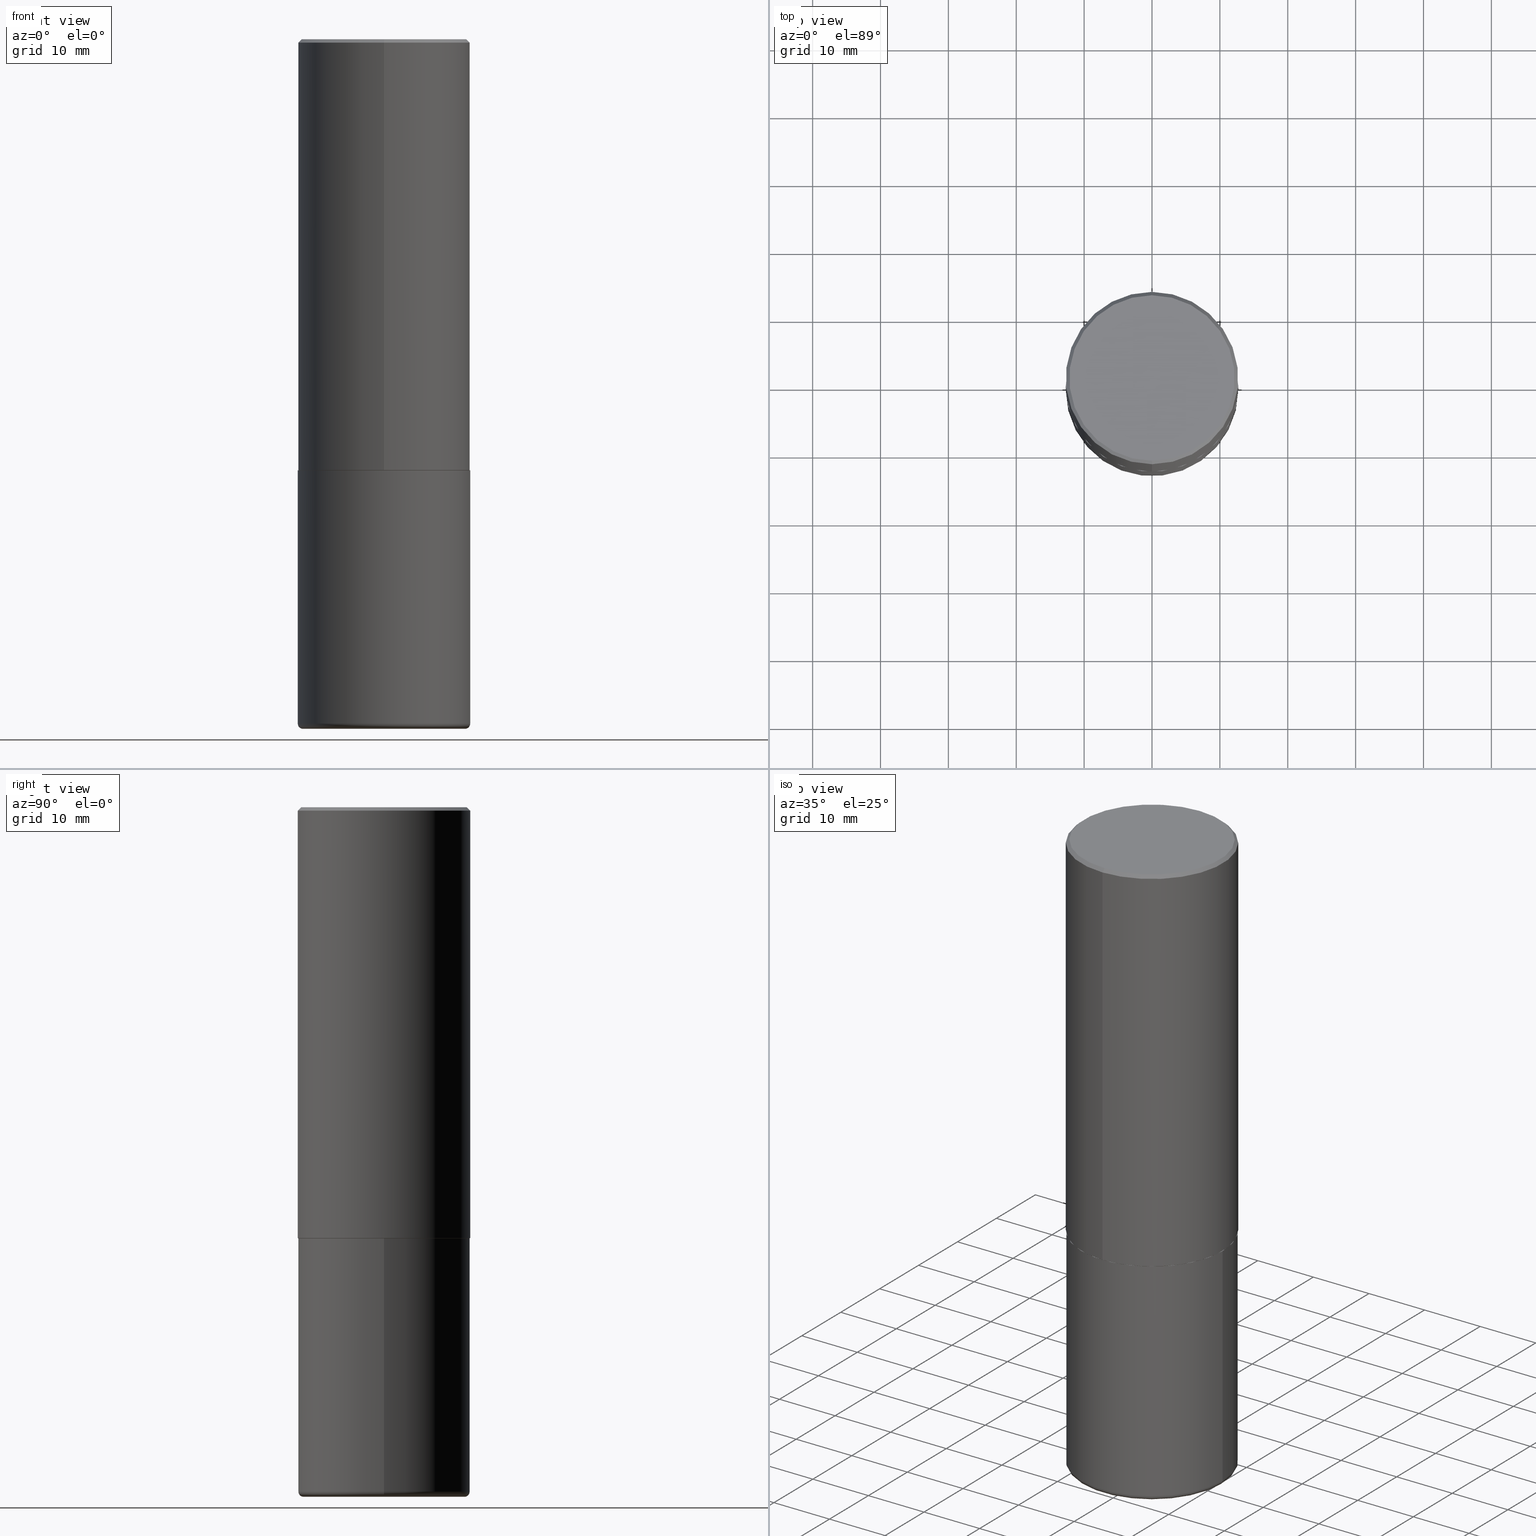
[diagram: canonical four-view strip — front | top / right | iso, engineering-drawing reading convention]
A machine part, canonical four-view strip (front | top / right | iso — engineering-drawing reading convention). The complete STEP part file that produces these views, byte-faithful:
ISO-10303-21;
HEADER;
FILE_DESCRIPTION (( 'STEP AP203' ),
    '1' );
FILE_NAME ('38305.STEP',
    '2024-03-02T21:49:46',
    ( '' ),
    ( '' ),
    'SwSTEP 2.0',
    'SolidWorks 2023',
    '' );
FILE_SCHEMA (( 'CONFIG_CONTROL_DESIGN' ));
ENDSEC;

DATA;
#1 = DATE_TIME_ROLE ( 'creation_date' ) ;
#2 = ADVANCED_FACE ( 'NONE', ( #19 ), #211, .T. ) ;
#3 = ORIENTED_EDGE ( 'NONE', *, *, #183, .F. ) ;
#4 = CALENDAR_DATE ( 2024, 2, 3 ) ;
#5 = LOCAL_TIME ( 16, 49, 46.00000000000000000, #68 ) ;
#6 = CARTESIAN_POINT ( 'NONE',  ( -0.4999999999999999445, -1.030846723640678645E-14, -3.970000000000000195 ) ) ;
#7 = ADVANCED_FACE ( 'NONE', ( #174 ), #368, .T. ) ;
#8 = CARTESIAN_POINT ( 'NONE',  ( 0.4699999999999999734, -1.714317337371983400E-14, -3.970000000000000195 ) ) ;
#9 = APPLICATION_CONTEXT ( 'configuration controlled 3d designs of mechanical parts and assemblies' ) ;
#10 = SECURITY_CLASSIFICATION_LEVEL ( 'unclassified' ) ;
#11 = DIRECTION ( 'NONE',  ( -2.444465131706345255E-29, 3.492918657822378473E-15, 1.000000000000000000 ) ) ;
#12 = DIRECTION ( 'NONE',  ( -6.982962677686265922E-15, -1.000000000000000000, 3.491643216902136408E-15 ) ) ;
#13 = COORDINATED_UNIVERSAL_TIME_OFFSET ( 5, 0, .BEHIND. ) ;
#14 = LINE ( 'NONE', #111, #262 ) ;
#15 = EDGE_CURVE ( 'NONE', #197, #304, #14, .T. ) ;
#16 = PERSON_AND_ORGANIZATION ( #272, #349 ) ;
#17 = CARTESIAN_POINT ( 'NONE',  ( 3.491481338843133355E-15, 0.4999999999999999445, -0.02000000000000185310 ) ) ;
#18 = CIRCLE ( 'NONE', #401, 0.4999999999999999445 ) ;
#19 = FACE_OUTER_BOUND ( 'NONE', #374, .T. ) ;
#20 = AXIS2_PLACEMENT_3D ( 'NONE', #267, #203, #340 ) ;
#21 = DIRECTION ( 'NONE',  ( -2.445468806185136597E-29, 3.491481338843145583E-15, 1.000000000000000000 ) ) ;
#22 = DIRECTION ( 'NONE',  ( -6.982962677686265922E-15, -1.000000000000000000, 3.492918657822378473E-15 ) ) ;
#23 = VERTEX_POINT ( 'NONE', #104 ) ;
#24 = CIRCLE ( 'NONE', #316, 0.4989999999999999991 ) ;
#25 = FACE_OUTER_BOUND ( 'NONE', #415, .T. ) ;
#26 = ORIENTED_EDGE ( 'NONE', *, *, #280, .T. ) ;
#27 = DIRECTION ( 'NONE',  ( -1.000000000000000000, 6.982962677686265922E-15, -4.876176775795935793E-29 ) ) ;
#28 = MANIFOLD_SOLID_BREP ( 'Body-Move/Copy2[2]', #244 ) ;
#29 = AXIS2_PLACEMENT_3D ( 'NONE', #95, #189, #318 ) ;
#30 = ORIENTED_EDGE ( 'NONE', *, *, #83, .T. ) ;
#31 = DIRECTION ( 'NONE',  ( 1.000000000000000000, -6.982962677686266711E-15, 4.876176775795935793E-29 ) ) ;
#32 = ORIENTED_EDGE ( 'NONE', *, *, #15, .F. ) ;
#33 = EDGE_CURVE ( 'NONE', #163, #285, #294, .T. ) ;
#34 = AXIS2_PLACEMENT_3D ( 'NONE', #301, #298, #333 ) ;
#35 = ORIENTED_EDGE ( 'NONE', *, *, #287, .T. ) ;
#36 = EDGE_CURVE ( 'NONE', #320, #407, #138, .T. ) ;
#37 = DATE_AND_TIME ( #135, #110 ) ;
#38 = ORIENTED_EDGE ( 'NONE', *, *, #412, .F. ) ;
#39 = DATE_AND_TIME ( #206, #5 ) ;
#40 = CARTESIAN_POINT ( 'NONE',  ( 6.113672015462842613E-29, -8.728703347107864943E-15, -2.500000000000000000 ) ) ;
#41 = DIRECTION ( 'NONE',  ( -2.444465131706345255E-29, 3.492918657822378473E-15, 1.000000000000000000 ) ) ;
#42 = APPROVAL_PERSON_ORGANIZATION ( #196, #309, #164 ) ;
#43 = CARTESIAN_POINT ( 'NONE',  ( 4.888930263412717169E-31, -6.985837315644793974E-17, -0.02000000000000010797 ) ) ;
#44 = APPROVAL_DATE_TIME ( #39, #309 ) ;
#45 = ORIENTED_EDGE ( 'NONE', *, *, #83, .F. ) ;
#46 = COORDINATED_UNIVERSAL_TIME_OFFSET ( 5, 0, .BEHIND. ) ;
#47 = CARTESIAN_POINT ( 'NONE',  ( -0.5000000000000000000, 3.552713678800500929E-15, -2.459467545127452891E-29 ) ) ;
#48 = CC_DESIGN_PERSON_AND_ORGANIZATION_ASSIGNMENT ( #16, #328, ( #356 ) ) ;
#49 = CARTESIAN_POINT ( 'NONE',  ( 0.4699999999999999734, -1.724791781388512737E-14, -4.000000000000000000 ) ) ;
#50 = AXIS2_PLACEMENT_3D ( 'NONE', #78, #268, #394 ) ;
#51 = ORIENTED_EDGE ( 'NONE', *, *, #66, .T. ) ;
#52 =( NAMED_UNIT ( * ) PLANE_ANGLE_UNIT ( ) SI_UNIT ( $, .RADIAN. ) );
#53 = CARTESIAN_POINT ( 'NONE',  ( 3.421651712066270057E-15, 0.4799999999999998157, -1.552124180431797316E-15 ) ) ;
#54 = LENGTH_MEASURE_WITH_UNIT ( LENGTH_MEASURE( 0.02539999999999999897 ), #342 );
#55 = CARTESIAN_POINT ( 'NONE',  ( -3.430248998885764992E-15, -0.5000000000000001110, -0.01999999999999835937 ) ) ;
#56 = CLOSED_SHELL ( 'NONE', ( #269, #409, #358, #161, #404, #213 ) ) ;
#57 = SECURITY_CLASSIFICATION ( '', '', #10 ) ;
#58 = ORIENTED_EDGE ( 'NONE', *, *, #317, .F. ) ;
#59 = CARTESIAN_POINT ( 'NONE',  ( 6.113672015462842613E-29, -8.728703347107864943E-15, -2.500000000000000000 ) ) ;
#60 = CARTESIAN_POINT ( 'NONE',  ( 6.111162829265862436E-29, -8.732296644555945592E-15, -2.499999999999999556 ) ) ;
#61 = VECTOR ( 'NONE', #218, 39.37007874015748143 ) ;
#62 = EDGE_CURVE ( 'NONE', #23, #132, #330, .T. ) ;
#63 = ORIENTED_EDGE ( 'NONE', *, *, #15, .T. ) ;
#64 = EDGE_LOOP ( 'NONE', ( #26, #253, #45, #246 ) ) ;
#65 = ORIENTED_EDGE ( 'NONE', *, *, #215, .F. ) ;
#66 = EDGE_CURVE ( 'NONE', #320, #156, #194, .T. ) ;
#67 = VECTOR ( 'NONE', #347, 39.37007874015748143 ) ;
#68 = COORDINATED_UNIVERSAL_TIME_OFFSET ( 5, 0, .BEHIND. ) ;
#69 = DIRECTION ( 'NONE',  ( -6.982962677686265922E-15, -1.000000000000000000, 3.492918657822378473E-15 ) ) ;
#70 = ORIENTED_EDGE ( 'NONE', *, *, #171, .F. ) ;
#71 = APPROVAL_STATUS ( 'not_yet_approved' ) ;
#72 = DIRECTION ( 'NONE',  ( -6.982962677686265922E-15, -1.000000000000000000, 3.284787166730577015E-15 ) ) ;
#73 = APPROVAL_ROLE ( '' ) ;
#74 = CARTESIAN_POINT ( 'NONE',  ( 3.491481338843133355E-15, 0.4999999999999999445, -0.02000000000000185310 ) ) ;
#75 = APPROVAL_ROLE ( '' ) ;
#76 = AXIS2_PLACEMENT_3D ( 'NONE', #79, #207, #393 ) ;
#77 = ADVANCED_FACE ( 'NONE', ( #210 ), #239, .F. ) ;
#78 = CARTESIAN_POINT ( 'NONE',  ( 0.000000000000000000, 0.000000000000000000, 0.000000000000000000 ) ) ;
#79 = CARTESIAN_POINT ( 'NONE',  ( 4.888930263412717169E-31, -6.985837315644793974E-17, -0.02000000000000010797 ) ) ;
#80 = DIRECTION ( 'NONE',  ( 1.000000000000000000, -6.982962677686267499E-15, 0.000000000000000000 ) ) ;
#81 = FACE_OUTER_BOUND ( 'NONE', #383, .T. ) ;
#82 = DIRECTION ( 'NONE',  ( 6.982962677686265922E-15, 1.000000000000000000, -3.491643216902136408E-15 ) ) ;
#83 = EDGE_CURVE ( 'NONE', #156, #320, #18, .T. ) ;
#84 = AXIS2_PLACEMENT_3D ( 'NONE', #392, #41, #72 ) ;
#85 = LOCAL_TIME ( 16, 49, 46.00000000000000000, #162 ) ;
#86 = DIRECTION ( 'NONE',  ( 2.444465131706344694E-29, -3.492918657822378868E-15, -1.000000000000000000 ) ) ;
#87 = AXIS2_PLACEMENT_3D ( 'NONE', #277, #408, #115 ) ;
#88 = DIRECTION ( 'NONE',  ( 1.000000000000000000, -6.982962677686267499E-15, 4.883557194083114022E-29 ) ) ;
#89 = CARTESIAN_POINT ( 'NONE',  ( -3.491481338843133750E-15, -0.5000000000000001110, 1.746459328911189631E-15 ) ) ;
#90 = ORIENTED_EDGE ( 'NONE', *, *, #33, .F. ) ;
#91 = DIMENSIONAL_EXPONENTS ( 1.000000000000000000, 0.000000000000000000, 0.000000000000000000, 0.000000000000000000, 0.000000000000000000, 0.000000000000000000, 0.000000000000000000 ) ;
#92 = DIRECTION ( 'NONE',  ( -2.445468806185136597E-29, 3.491481338843145583E-15, 1.000000000000000000 ) ) ;
#93 = VECTOR ( 'NONE', #344, 39.37007874015748143 ) ;
#94 = UNCERTAINTY_MEASURE_WITH_UNIT (LENGTH_MEASURE( 1.000000000000000082E-05 ), #185, 'distance_accuracy_value', 'NONE');
#95 = CARTESIAN_POINT ( 'NONE',  ( 4.888930263412717169E-31, -6.985837315644793974E-17, -0.02000000000000010797 ) ) ;
#96 = VERTEX_POINT ( 'NONE', #49 ) ;
#97 = PRODUCT_DEFINITION_FORMATION_WITH_SPECIFIED_SOURCE ( 'ANY', '', #256, .NOT_KNOWN. ) ;
#98 = EDGE_CURVE ( 'NONE', #163, #304, #336, .T. ) ;
#99 = ORIENTED_EDGE ( 'NONE', *, *, #171, .T. ) ;
#100 = ORIENTED_EDGE ( 'NONE', *, *, #140, .T. ) ;
#101 = DATE_AND_TIME ( #323, #362 ) ;
#102 = EDGE_LOOP ( 'NONE', ( #279, #319 ) ) ;
#103 = APPROVAL_DATE_TIME ( #101, #367 ) ;
#104 = CARTESIAN_POINT ( 'NONE',  ( -3.484498376165385415E-15, -0.4990000000000087144, -2.499999999999997780 ) ) ;
#105 = DIRECTION ( 'NONE',  ( -2.444465131706345255E-29, 3.492918657822378473E-15, 1.000000000000000000 ) ) ;
#106 = DATE_TIME_ROLE ( 'classification_date' ) ;
#107 = DIRECTION ( 'NONE',  ( -2.445468806185136597E-29, 3.491481338843145583E-15, 1.000000000000000000 ) ) ;
#108 = DIRECTION ( 'NONE',  ( -2.444465131706344694E-29, 3.492918657822378868E-15, 1.000000000000000000 ) ) ;
#109 = APPROVAL_DATE_TIME ( #290, #200 ) ;
#110 = LOCAL_TIME ( 16, 49, 46.00000000000000000, #46 ) ;
#111 = CARTESIAN_POINT ( 'NONE',  ( 3.552713678800501718E-15, 0.5000000000000001110, -1.746459328911189631E-15 ) ) ;
#112 = CARTESIAN_POINT ( 'NONE',  ( 6.108718364134157248E-29, -8.728803725898125516E-15, -2.499000000000000110 ) ) ;
#113 =( NAMED_UNIT ( * ) SI_UNIT ( $, .STERADIAN. ) SOLID_ANGLE_UNIT ( ) );
#114 = FACE_OUTER_BOUND ( 'NONE', #350, .T. ) ;
#115 = DIRECTION ( 'NONE',  ( -6.982962677686265922E-15, -1.000000000000000000, 3.284787166730577015E-15 ) ) ;
#116 = TOROIDAL_SURFACE ( 'NONE', #230, 0.4699999999999999734, 0.02999999999999995379 ) ;
#117 = CARTESIAN_POINT ( 'NONE',  ( 3.351822085289406364E-15, 0.4799999999999998157, -1.614362568093269153E-15 ) ) ;
#118 = CARTESIAN_POINT ( 'NONE',  ( -0.4699999999999999734, -1.046742086685344905E-14, -4.000000000000000000 ) ) ;
#119 = DIRECTION ( 'NONE',  ( 2.438088387897960049E-29, -3.491481338843145188E-15, -1.000000000000000000 ) ) ;
#120 = EDGE_CURVE ( 'NONE', #304, #130, #305, .T. ) ;
#121 = MECHANICAL_CONTEXT ( 'NONE', #402, 'mechanical' ) ;
#122 = DIRECTION ( 'NONE',  ( -2.444465131706345255E-29, 3.492918657822378473E-15, 1.000000000000000000 ) ) ;
#123 = FACE_OUTER_BOUND ( 'NONE', #260, .T. ) ;
#124 = APPROVAL_PERSON_ORGANIZATION ( #302, #200, #73 ) ;
#125 = ORIENTED_EDGE ( 'NONE', *, *, #329, .F. ) ;
#126 = EDGE_LOOP ( 'NONE', ( #99, #35, #3, #236 ) ) ;
#127 = CC_DESIGN_APPROVAL ( #309, ( #356 ) ) ;
#128 = ORIENTED_EDGE ( 'NONE', *, *, #148, .T. ) ;
#129 = DIRECTION ( 'NONE',  ( -2.444465131706345255E-29, 3.492918657822378473E-15, 1.000000000000000000 ) ) ;
#130 = VERTEX_POINT ( 'NONE', #176 ) ;
#131 = SHAPE_DEFINITION_REPRESENTATION ( #286, #137 ) ;
#132 = VERTEX_POINT ( 'NONE', #397 ) ;
#133 =( GEOMETRIC_REPRESENTATION_CONTEXT ( 3 ) GLOBAL_UNCERTAINTY_ASSIGNED_CONTEXT ( ( #94 ) ) GLOBAL_UNIT_ASSIGNED_CONTEXT ( ( #185, #52, #113 ) ) REPRESENTATION_CONTEXT ( 'NONE', 'WORKASPACE' ) );
#134 = DIRECTION ( 'NONE',  ( 1.000000000000000000, -6.982962677686267499E-15, 0.000000000000000000 ) ) ;
#135 = CALENDAR_DATE ( 2024, 2, 3 ) ;
#136 = FACE_OUTER_BOUND ( 'NONE', #216, .T. ) ;
#137 = ADVANCED_BREP_SHAPE_REPRESENTATION ( '38305', ( #310, #28, #369 ), #133 ) ;
#138 = LINE ( 'NONE', #47, #348 ) ;
#139 = CALENDAR_DATE ( 2024, 2, 3 ) ;
#140 = EDGE_CURVE ( 'NONE', #285, #163, #178, .T. ) ;
#141 = CIRCLE ( 'NONE', #20, 0.02999999999999995379 ) ;
#142 = CARTESIAN_POINT ( 'NONE',  ( -3.484498376165385415E-15, -0.4990000000000087144, -2.499999999999997780 ) ) ;
#143 = DIRECTION ( 'NONE',  ( -2.444465131706345255E-29, 3.492918657822378473E-15, 1.000000000000000000 ) ) ;
#144 = PERSON_AND_ORGANIZATION ( #272, #349 ) ;
#145 = AXIS2_PLACEMENT_3D ( 'NONE', #273, #108, #295 ) ;
#146 = CARTESIAN_POINT ( 'NONE',  ( 0.5000000000000000000, -1.222018468595099830E-14, -2.500000000000000000 ) ) ;
#147 = DIRECTION ( 'NONE',  ( 6.982962677686265922E-15, 1.000000000000000000, -3.492918657822378868E-15 ) ) ;
#148 = EDGE_CURVE ( 'NONE', #197, #132, #157, .T. ) ;
#149 = CYLINDRICAL_SURFACE ( 'NONE', #339, 0.5000000000000001110 ) ;
#150 = ORIENTED_EDGE ( 'NONE', *, *, #343, .F. ) ;
#151 = CARTESIAN_POINT ( 'NONE',  ( -0.5000000000000000000, -7.742228452357075234E-15, -2.500000000000000000 ) ) ;
#152 = EDGE_CURVE ( 'NONE', #96, #156, #395, .T. ) ;
#153 = PRODUCT_RELATED_PRODUCT_CATEGORY ( 'detail', '', ( #256 ) ) ;
#154 = ORIENTED_EDGE ( 'NONE', *, *, #148, .F. ) ;
#155 = CARTESIAN_POINT ( 'NONE',  ( 9.781875224740546387E-29, -1.396592535537258233E-14, -4.000000000000000000 ) ) ;
#156 = VERTEX_POINT ( 'NONE', #327 ) ;
#157 = CIRCLE ( 'NONE', #228, 0.5000000000000002220 ) ;
#158 = AXIS2_PLACEMENT_3D ( 'NONE', #250, #119, #248 ) ;
#159 = ADVANCED_FACE ( 'NONE', ( #136 ), #202, .T. ) ;
#160 = EDGE_LOOP ( 'NONE', ( #70, #324 ) ) ;
#161 = ADVANCED_FACE ( 'NONE', ( #204 ), #201, .T. ) ;
#162 = COORDINATED_UNIVERSAL_TIME_OFFSET ( 5, 0, .BEHIND. ) ;
#163 = VERTEX_POINT ( 'NONE', #53 ) ;
#164 = APPROVAL_ROLE ( '' ) ;
#165 = DIRECTION ( 'NONE',  ( 1.000000000000000000, -6.982962677686269077E-15, 0.000000000000000000 ) ) ;
#166 = DIRECTION ( 'NONE',  ( -2.445468806185136877E-29, 3.491481338843145188E-15, 1.000000000000000000 ) ) ;
#167 = AXIS2_PLACEMENT_3D ( 'NONE', #43, #357, #82 ) ;
#168 = CIRCLE ( 'NONE', #219, 0.4699999999999999734 ) ;
#169 = PERSON_AND_ORGANIZATION ( #272, #349 ) ;
#170 = CARTESIAN_POINT ( 'NONE',  ( -3.361644018908049661E-15, -0.4799999999999998157, 1.801077731077684661E-15 ) ) ;
#171 = EDGE_CURVE ( 'NONE', #23, #172, #24, .T. ) ;
#172 = VERTEX_POINT ( 'NONE', #341 ) ;
#173 = COORDINATED_UNIVERSAL_TIME_OFFSET ( 5, 0, .BEHIND. ) ;
#174 = FACE_OUTER_BOUND ( 'NONE', #126, .T. ) ;
#175 = PERSON_AND_ORGANIZATION_ROLE ( 'classification_officer' ) ;
#176 = CARTESIAN_POINT ( 'NONE',  ( -3.430248998885764992E-15, -0.5000000000000001110, -0.01999999999999835937 ) ) ;
#177 = ADVANCED_FACE ( 'NONE', ( #114 ), #400, .F. ) ;
#178 = CIRCLE ( 'NONE', #284, 0.4799999999999998157 ) ;
#179 = CC_DESIGN_APPROVAL ( #200, ( #57 ) ) ;
#180 = CARTESIAN_POINT ( 'NONE',  ( -3.042791369841808055E-45, 4.347872509910743958E-31, 1.244767753229437217E-16 ) ) ;
#181 = DIRECTION ( 'NONE',  ( 0.000000000000000000, 0.000000000000000000, 1.000000000000000000 ) ) ;
#182 = DIRECTION ( 'NONE',  ( 1.000000000000000000, 0.000000000000000000, 0.000000000000000000 ) ) ;
#183 = EDGE_CURVE ( 'NONE', #132, #197, #276, .T. ) ;
#184 = AXIS2_PLACEMENT_3D ( 'NONE', #366, #396, #134 ) ;
#185 =( CONVERSION_BASED_UNIT ( 'INCH', #54 ) LENGTH_UNIT ( ) NAMED_UNIT ( #91 ) );
#186 = CIRCLE ( 'NONE', #87, 0.4989999999999999991 ) ;
#187 = CARTESIAN_POINT ( 'NONE',  ( 9.781875224740546387E-29, -1.396592535537258233E-14, -4.000000000000000000 ) ) ;
#188 = ORIENTED_EDGE ( 'NONE', *, *, #36, .T. ) ;
#189 = DIRECTION ( 'NONE',  ( 2.444465131706345255E-29, -3.492918657822378473E-15, -1.000000000000000000 ) ) ;
#190 = CIRCLE ( 'NONE', #281, 0.5000000000000000000 ) ;
#191 = ORIENTED_EDGE ( 'NONE', *, *, #120, .T. ) ;
#192 = ORIENTED_EDGE ( 'NONE', *, *, #229, .F. ) ;
#193 = EDGE_LOOP ( 'NONE', ( #30, #188, #255, #150 ) ) ;
#194 = CIRCLE ( 'NONE', #184, 0.4999999999999999445 ) ;
#195 = AXIS2_PLACEMENT_3D ( 'NONE', #303, #11, #326 ) ;
#196 = PERSON_AND_ORGANIZATION ( #272, #349 ) ;
#197 = VERTEX_POINT ( 'NONE', #371 ) ;
#198 = APPLICATION_PROTOCOL_DEFINITION ( 'international standard', 'config_control_design', 1994, #9 ) ;
#199 = DIRECTION ( 'NONE',  ( 4.937700262164543309E-15, 0.7071067811865444641, -0.7071067811865505703 ) ) ;
#200 = APPROVAL ( #71, 'UNSPECIFIED' ) ;
#201 = CYLINDRICAL_SURFACE ( 'NONE', #50, 0.5000000000000000000 ) ;
#202 = CONICAL_SURFACE ( 'NONE', #346, 0.4989999999999999991, 0.7853981633979605359 ) ;
#203 = DIRECTION ( 'NONE',  ( 7.105427357601001859E-15, 1.000000000000000000, -3.491481338843145583E-15 ) ) ;
#204 = FACE_OUTER_BOUND ( 'NONE', #212, .T. ) ;
#205 = ORIENTED_EDGE ( 'NONE', *, *, #36, .F. ) ;
#206 = CALENDAR_DATE ( 2024, 2, 3 ) ;
#207 = DIRECTION ( 'NONE',  ( -2.444465131706345255E-29, 3.492918657822378473E-15, 1.000000000000000000 ) ) ;
#208 = DIRECTION ( 'NONE',  ( -2.444465131706345255E-29, 3.492918657822378868E-15, 1.000000000000000000 ) ) ;
#209 = PLANE ( 'NONE',  #222 ) ;
#210 = FACE_OUTER_BOUND ( 'NONE', #160, .T. ) ;
#211 = CONICAL_SURFACE ( 'NONE', #167, 0.5000000000000000000, 0.7853981633974473908 ) ;
#212 = EDGE_LOOP ( 'NONE', ( #205, #51, #283, #58 ) ) ;
#213 = ADVANCED_FACE ( 'NONE', ( #405 ), #376, .T. ) ;
#214 = EDGE_LOOP ( 'NONE', ( #227, #289, #355, #388 ) ) ;
#215 = EDGE_CURVE ( 'NONE', #285, #130, #373, .T. ) ;
#216 = EDGE_LOOP ( 'NONE', ( #225, #258, #411, #154 ) ) ;
#217 = AXIS2_PLACEMENT_3D ( 'NONE', #8, #263, #390 ) ;
#218 = DIRECTION ( 'NONE',  ( -2.444465131706345255E-29, 3.492918657822378868E-15, 1.000000000000000000 ) ) ;
#219 = AXIS2_PLACEMENT_3D ( 'NONE', #187, #92, #312 ) ;
#220 = CARTESIAN_POINT ( 'NONE',  ( 0.000000000000000000, 0.000000000000000000, 0.000000000000000000 ) ) ;
#221 = DESIGN_CONTEXT ( 'detailed design', #9, 'design' ) ;
#222 = AXIS2_PLACEMENT_3D ( 'NONE', #399, #307, #27 ) ;
#223 = ORIENTED_EDGE ( 'NONE', *, *, #412, .T. ) ;
#224 = ORIENTED_EDGE ( 'NONE', *, *, #66, .F. ) ;
#225 = ORIENTED_EDGE ( 'NONE', *, *, #287, .F. ) ;
#226 = DATE_AND_TIME ( #4, #85 ) ;
#227 = ORIENTED_EDGE ( 'NONE', *, *, #140, .F. ) ;
#228 = AXIS2_PLACEMENT_3D ( 'NONE', #112, #105, #241 ) ;
#229 = EDGE_CURVE ( 'NONE', #352, #96, #168, .T. ) ;
#230 = AXIS2_PLACEMENT_3D ( 'NONE', #245, #315, #375 ) ;
#231 = PERSON_AND_ORGANIZATION ( #272, #349 ) ;
#232 = CYLINDRICAL_SURFACE ( 'NONE', #195, 0.5000000000000001110 ) ;
#233 = DIRECTION ( 'NONE',  ( -2.444465131706345255E-29, 3.492918657822378473E-15, 1.000000000000000000 ) ) ;
#234 = CARTESIAN_POINT ( 'NONE',  ( 6.111162829265862436E-29, -8.732296644555945592E-15, -2.499999999999999556 ) ) ;
#235 = PERSON_AND_ORGANIZATION_ROLE ( 'design_supplier' ) ;
#236 = ORIENTED_EDGE ( 'NONE', *, *, #62, .F. ) ;
#237 = CC_DESIGN_APPROVAL ( #367, ( #97 ) ) ;
#238 = DIRECTION ( 'NONE',  ( 5.024295867790635654E-15, 0.7071067811869121700, 0.7071067811861828645 ) ) ;
#239 = PLANE ( 'NONE',  #145 ) ;
#240 = CC_DESIGN_DATE_AND_TIME_ASSIGNMENT ( #37, #106, ( #57 ) ) ;
#241 = DIRECTION ( 'NONE',  ( -6.982962677686266711E-15, -1.000000000000000000, 3.278217592397114284E-15 ) ) ;
#242 = DIRECTION ( 'NONE',  ( -6.982962677686266711E-15, -1.000000000000000000, 3.278217592397114284E-15 ) ) ;
#243 = ADVANCED_FACE ( 'NONE', ( #25 ), #149, .T. ) ;
#244 = CLOSED_SHELL ( 'NONE', ( #7, #306, #282, #2, #243, #159, #77, #177 ) ) ;
#245 = CARTESIAN_POINT ( 'NONE',  ( 9.708511160554992872E-29, -1.386118091520728738E-14, -3.970000000000000195 ) ) ;
#246 = ORIENTED_EDGE ( 'NONE', *, *, #152, .F. ) ;
#247 = FACE_OUTER_BOUND ( 'NONE', #102, .T. ) ;
#248 = DIRECTION ( 'NONE',  ( -1.000000000000000000, 6.982962677686265922E-15, -4.876176775795935793E-29 ) ) ;
#249 = LINE ( 'NONE', #89, #61 ) ;
#250 = CARTESIAN_POINT ( 'NONE',  ( 9.781875224740546387E-29, -1.396592535537258233E-14, -4.000000000000000000 ) ) ;
#251 = DIRECTION ( 'NONE',  ( -2.445468806185136597E-29, 3.491481338843145583E-15, 1.000000000000000000 ) ) ;
#252 = CIRCLE ( 'NONE', #296, 0.5000000000000000000 ) ;
#253 = ORIENTED_EDGE ( 'NONE', *, *, #329, .T. ) ;
#254 = AXIS2_PLACEMENT_3D ( 'NONE', #117, #86, #147 ) ;
#255 = ORIENTED_EDGE ( 'NONE', *, *, #384, .F. ) ;
#256 = PRODUCT ( '38305', '38305', '', ( #121 ) ) ;
#257 = DIRECTION ( 'NONE',  ( -2.445468806185136597E-29, 3.491481338843145583E-15, 1.000000000000000000 ) ) ;
#258 = ORIENTED_EDGE ( 'NONE', *, *, #391, .T. ) ;
#259 = FACE_OUTER_BOUND ( 'NONE', #214, .T. ) ;
#260 = EDGE_LOOP ( 'NONE', ( #125, #292, #386, #224 ) ) ;
#261 = CC_DESIGN_DATE_AND_TIME_ASSIGNMENT ( #226, #1, ( #356 ) ) ;
#262 = VECTOR ( 'NONE', #208, 39.37007874015748143 ) ;
#263 = DIRECTION ( 'NONE',  ( -6.982962677686266711E-15, -1.000000000000000000, 3.491481338843145583E-15 ) ) ;
#264 = AXIS2_PLACEMENT_3D ( 'NONE', #372, #251, #88 ) ;
#265 = CIRCLE ( 'NONE', #76, 0.5000000000000000000 ) ;
#266 = DIRECTION ( 'NONE',  ( -2.444465131706345255E-29, 3.492918657822378473E-15, 1.000000000000000000 ) ) ;
#267 = CARTESIAN_POINT ( 'NONE',  ( -0.4699999999999999734, -1.052163005713481828E-14, -3.970000000000000195 ) ) ;
#268 = DIRECTION ( 'NONE',  ( -2.445468806185136597E-29, 3.491481338843145583E-15, 1.000000000000000000 ) ) ;
#269 = ADVANCED_FACE ( 'NONE', ( #380 ), #351, .T. ) ;
#270 = DIRECTION ( 'NONE',  ( -4.937700262167077130E-15, -0.7071067811869072850, 0.7071067811861877495 ) ) ;
#271 = CIRCLE ( 'NONE', #377, 0.4699999999999999734 ) ;
#272 = PERSON ( 'UNSPECIFIED', 'UNSPECIFIED', 'UNSPECIFIED', ('UNSPECIFIED'), ('UNSPECIFIED'), ('UNSPECIFIED') ) ;
#273 = CARTESIAN_POINT ( 'NONE',  ( 6.111162829265862436E-29, -8.732296644555945592E-15, -2.499999999999999556 ) ) ;
#274 = CARTESIAN_POINT ( 'NONE',  ( 0.5000000000000000000, -3.491481338843133355E-15, 2.438088387897967896E-29 ) ) ;
#275 = CC_DESIGN_PERSON_AND_ORGANIZATION_ASSIGNMENT ( #169, #235, ( #97 ) ) ;
#276 = CIRCLE ( 'NONE', #403, 0.5000000000000002220 ) ;
#277 = CARTESIAN_POINT ( 'NONE',  ( 6.111162829265862436E-29, -8.732296644555945592E-15, -2.499999999999999556 ) ) ;
#278 = CARTESIAN_POINT ( 'NONE',  ( 0.000000000000000000, 0.000000000000000000, 0.000000000000000000 ) ) ;
#279 = ORIENTED_EDGE ( 'NONE', *, *, #384, .T. ) ;
#280 = EDGE_CURVE ( 'NONE', #96, #352, #271, .T. ) ;
#281 = AXIS2_PLACEMENT_3D ( 'NONE', #40, #107, #165 ) ;
#282 = ADVANCED_FACE ( 'NONE', ( #259 ), #321, .T. ) ;
#283 = ORIENTED_EDGE ( 'NONE', *, *, #343, .T. ) ;
#284 = AXIS2_PLACEMENT_3D ( 'NONE', #180, #233, #22 ) ;
#285 = VERTEX_POINT ( 'NONE', #170 ) ;
#286 = PRODUCT_DEFINITION_SHAPE ( 'NONE', 'NONE',  #356 ) ;
#287 = EDGE_CURVE ( 'NONE', #172, #197, #300, .T. ) ;
#288 = CARTESIAN_POINT ( 'NONE',  ( 0.000000000000000000, 0.000000000000000000, 0.000000000000000000 ) ) ;
#289 = ORIENTED_EDGE ( 'NONE', *, *, #215, .T. ) ;
#290 = DATE_AND_TIME ( #139, #354 ) ;
#291 = CC_DESIGN_PERSON_AND_ORGANIZATION_ASSIGNMENT ( #144, #325, ( #256 ) ) ;
#292 = ORIENTED_EDGE ( 'NONE', *, *, #229, .T. ) ;
#293 = PERSON_AND_ORGANIZATION_ROLE ( 'creator' ) ;
#294 = CIRCLE ( 'NONE', #34, 0.4799999999999998157 ) ;
#295 = DIRECTION ( 'NONE',  ( -6.982962677686265922E-15, -1.000000000000000000, 3.492918657822378868E-15 ) ) ;
#296 = AXIS2_PLACEMENT_3D ( 'NONE', #59, #21, #337 ) ;
#297 = APPROVAL_STATUS ( 'not_yet_approved' ) ;
#298 = DIRECTION ( 'NONE',  ( -2.444465131706345255E-29, 3.492918657822378473E-15, 1.000000000000000000 ) ) ;
#299 = PERSON_AND_ORGANIZATION ( #272, #349 ) ;
#300 = LINE ( 'NONE', #365, #389 ) ;
#301 = CARTESIAN_POINT ( 'NONE',  ( -3.042791369841808055E-45, 4.347872509910743958E-31, 1.244767753229437217E-16 ) ) ;
#302 = PERSON_AND_ORGANIZATION ( #272, #349 ) ;
#303 = CARTESIAN_POINT ( 'NONE',  ( 0.000000000000000000, 0.000000000000000000, 0.000000000000000000 ) ) ;
#304 = VERTEX_POINT ( 'NONE', #17 ) ;
#305 = CIRCLE ( 'NONE', #413, 0.5000000000000000000 ) ;
#306 = ADVANCED_FACE ( 'NONE', ( #81 ), #232, .T. ) ;
#307 = DIRECTION ( 'NONE',  ( 2.438088387897960049E-29, -3.491481338843145188E-15, -1.000000000000000000 ) ) ;
#308 = CARTESIAN_POINT ( 'NONE',  ( 4.888930263412717169E-31, -6.985837315644793974E-17, -0.02000000000000010797 ) ) ;
#309 = APPROVAL ( #387, 'UNSPECIFIED' ) ;
#310 = MANIFOLD_SOLID_BREP ( 'Body-Move/Copy2[1]', #56 ) ;
#311 = VECTOR ( 'NONE', #199, 39.37007874015748143 ) ;
#312 = DIRECTION ( 'NONE',  ( 1.000000000000000000, -6.982962677686267499E-15, 0.000000000000000000 ) ) ;
#313 = EDGE_CURVE ( 'NONE', #130, #304, #265, .T. ) ;
#314 = ORIENTED_EDGE ( 'NONE', *, *, #183, .T. ) ;
#315 = DIRECTION ( 'NONE',  ( -2.445468806185136597E-29, 3.491481338843145583E-15, 1.000000000000000000 ) ) ;
#316 = AXIS2_PLACEMENT_3D ( 'NONE', #60, #143, #398 ) ;
#317 = EDGE_CURVE ( 'NONE', #407, #345, #190, .T. ) ;
#318 = DIRECTION ( 'NONE',  ( 6.982962677686265922E-15, 1.000000000000000000, -3.491643216902136408E-15 ) ) ;
#319 = ORIENTED_EDGE ( 'NONE', *, *, #317, .T. ) ;
#320 = VERTEX_POINT ( 'NONE', #6 ) ;
#321 = CONICAL_SURFACE ( 'NONE', #29, 0.5000000000000000000, 0.7853981633974473908 ) ;
#322 = EDGE_LOOP ( 'NONE', ( #418, #192 ) ) ;
#323 = CALENDAR_DATE ( 2024, 2, 3 ) ;
#324 = ORIENTED_EDGE ( 'NONE', *, *, #391, .F. ) ;
#325 = PERSON_AND_ORGANIZATION_ROLE ( 'design_owner' ) ;
#326 = DIRECTION ( 'NONE',  ( -6.982962677686265922E-15, -1.000000000000000000, 3.492918657822378473E-15 ) ) ;
#327 = CARTESIAN_POINT ( 'NONE',  ( 0.4999999999999999445, -1.735266225405042074E-14, -3.970000000000000195 ) ) ;
#328 = PERSON_AND_ORGANIZATION_ROLE ( 'creator' ) ;
#329 = EDGE_CURVE ( 'NONE', #352, #320, #141, .T. ) ;
#330 = LINE ( 'NONE', #142, #360 ) ;
#331 = APPROVAL_PERSON_ORGANIZATION ( #299, #367, #75 ) ;
#332 = CC_DESIGN_PERSON_AND_ORGANIZATION_ASSIGNMENT ( #231, #175, ( #57 ) ) ;
#333 = DIRECTION ( 'NONE',  ( -6.982962677686265922E-15, -1.000000000000000000, 3.492918657822378473E-15 ) ) ;
#334 = ORIENTED_EDGE ( 'NONE', *, *, #313, .F. ) ;
#335 = PERSON_AND_ORGANIZATION ( #272, #349 ) ;
#336 = LINE ( 'NONE', #74, #311 ) ;
#337 = DIRECTION ( 'NONE',  ( 1.000000000000000000, -6.982962677686269077E-15, 0.000000000000000000 ) ) ;
#338 = DIRECTION ( 'NONE',  ( -2.445468806185136597E-29, 3.491481338843145583E-15, 1.000000000000000000 ) ) ;
#339 = AXIS2_PLACEMENT_3D ( 'NONE', #220, #129, #69 ) ;
#340 = DIRECTION ( 'NONE',  ( -1.000000000000000000, 7.105427357601001859E-15, 0.000000000000000000 ) ) ;
#341 = CARTESIAN_POINT ( 'NONE',  ( 3.549160965121762351E-15, 0.4989999999999912283, -2.500000000000001332 ) ) ;
#342 =( LENGTH_UNIT ( ) NAMED_UNIT ( * ) SI_UNIT ( $, .METRE. ) );
#343 = EDGE_CURVE ( 'NONE', #156, #345, #370, .T. ) ;
#344 = DIRECTION ( 'NONE',  ( -4.851104656540959542E-15, -0.7071067811865493491, -0.7071067811865456854 ) ) ;
#345 = VERTEX_POINT ( 'NONE', #146 ) ;
#346 = AXIS2_PLACEMENT_3D ( 'NONE', #234, #361, #359 ) ;
#347 = DIRECTION ( 'NONE',  ( -2.445468806185136877E-29, 3.491481338843145188E-15, 1.000000000000000000 ) ) ;
#348 = VECTOR ( 'NONE', #166, 39.37007874015748143 ) ;
#349 = ORGANIZATION ( 'UNSPECIFIED', 'UNSPECIFIED', '' ) ;
#350 = EDGE_LOOP ( 'NONE', ( #364, #100 ) ) ;
#351 = CYLINDRICAL_SURFACE ( 'NONE', #382, 0.5000000000000000000 ) ;
#352 = VERTEX_POINT ( 'NONE', #118 ) ;
#353 = ORIENTED_EDGE ( 'NONE', *, *, #98, .T. ) ;
#354 = LOCAL_TIME ( 16, 49, 46.00000000000000000, #13 ) ;
#355 = ORIENTED_EDGE ( 'NONE', *, *, #313, .T. ) ;
#356 = PRODUCT_DEFINITION ( 'UNKNOWN', '', #97, #221 ) ;
#357 = DIRECTION ( 'NONE',  ( 2.444465131706345255E-29, -3.492918657822378473E-15, -1.000000000000000000 ) ) ;
#358 = ADVANCED_FACE ( 'NONE', ( #247 ), #209, .F. ) ;
#359 = DIRECTION ( 'NONE',  ( -6.982962677686265922E-15, -1.000000000000000000, 3.284787166730577015E-15 ) ) ;
#360 = VECTOR ( 'NONE', #270, 39.37007874015748143 ) ;
#361 = DIRECTION ( 'NONE',  ( -2.444465131706345255E-29, 3.492918657822378473E-15, 1.000000000000000000 ) ) ;
#362 = LOCAL_TIME ( 16, 49, 46.00000000000000000, #173 ) ;
#363 = CARTESIAN_POINT ( 'NONE',  ( 9.708511160554992872E-29, -1.386118091520728738E-14, -3.970000000000000195 ) ) ;
#364 = ORIENTED_EDGE ( 'NONE', *, *, #33, .T. ) ;
#365 = CARTESIAN_POINT ( 'NONE',  ( 3.545608251442960663E-15, 0.4989999999999912283, -2.500000000000001332 ) ) ;
#366 = CARTESIAN_POINT ( 'NONE',  ( 9.708511160554992872E-29, -1.386118091520728738E-14, -3.970000000000000195 ) ) ;
#367 = APPROVAL ( #297, 'UNSPECIFIED' ) ;
#368 = CONICAL_SURFACE ( 'NONE', #84, 0.4989999999999999991, 0.7853981633979605359 ) ;
#369 = AXIS2_PLACEMENT_3D ( 'NONE', #278, #181, #182 ) ;
#370 = LINE ( 'NONE', #274, #67 ) ;
#371 = CARTESIAN_POINT ( 'NONE',  ( 3.552713678800533273E-15, 0.4999999999999916178, -2.499000000000001886 ) ) ;
#372 = CARTESIAN_POINT ( 'NONE',  ( 9.708511160554992872E-29, -1.386118091520728738E-14, -3.970000000000000195 ) ) ;
#373 = LINE ( 'NONE', #55, #93 ) ;
#374 = EDGE_LOOP ( 'NONE', ( #65, #90, #353, #191 ) ) ;
#375 = DIRECTION ( 'NONE',  ( 1.000000000000000000, -6.982962677686267499E-15, 4.883557194083114022E-29 ) ) ;
#376 = PLANE ( 'NONE',  #158 ) ;
#377 = AXIS2_PLACEMENT_3D ( 'NONE', #155, #257, #385 ) ;
#378 = FACE_OUTER_BOUND ( 'NONE', #64, .T. ) ;
#379 = CARTESIAN_POINT ( 'NONE',  ( 6.108718364134157248E-29, -8.728803725898125516E-15, -2.499000000000000110 ) ) ;
#380 = FACE_OUTER_BOUND ( 'NONE', #193, .T. ) ;
#381 = ORIENTED_EDGE ( 'NONE', *, *, #120, .F. ) ;
#382 = AXIS2_PLACEMENT_3D ( 'NONE', #288, #417, #31 ) ;
#383 = EDGE_LOOP ( 'NONE', ( #314, #63, #334, #38 ) ) ;
#384 = EDGE_CURVE ( 'NONE', #345, #407, #252, .T. ) ;
#385 = DIRECTION ( 'NONE',  ( 1.000000000000000000, -6.982962677686267499E-15, 0.000000000000000000 ) ) ;
#386 = ORIENTED_EDGE ( 'NONE', *, *, #152, .T. ) ;
#387 = APPROVAL_STATUS ( 'not_yet_approved' ) ;
#388 = ORIENTED_EDGE ( 'NONE', *, *, #98, .F. ) ;
#389 = VECTOR ( 'NONE', #238, 39.37007874015748143 ) ;
#390 = DIRECTION ( 'NONE',  ( 1.000000000000000000, -6.982962677686279332E-15, 0.000000000000000000 ) ) ;
#391 = EDGE_CURVE ( 'NONE', #172, #23, #186, .T. ) ;
#392 = CARTESIAN_POINT ( 'NONE',  ( 6.111162829265862436E-29, -8.732296644555945592E-15, -2.499999999999999556 ) ) ;
#393 = DIRECTION ( 'NONE',  ( -6.982962677686265922E-15, -1.000000000000000000, 3.491643216902136408E-15 ) ) ;
#394 = DIRECTION ( 'NONE',  ( 1.000000000000000000, -6.982962677686266711E-15, 4.876176775795935793E-29 ) ) ;
#395 = CIRCLE ( 'NONE', #217, 0.02999999999999995379 ) ;
#396 = DIRECTION ( 'NONE',  ( -2.445468806185136597E-29, 3.491481338843145583E-15, 1.000000000000000000 ) ) ;
#397 = CARTESIAN_POINT ( 'NONE',  ( -3.491481338843073796E-15, -0.5000000000000089928, -2.498999999999998778 ) ) ;
#398 = DIRECTION ( 'NONE',  ( -6.982962677686265922E-15, -1.000000000000000000, 3.284787166730577015E-15 ) ) ;
#399 = CARTESIAN_POINT ( 'NONE',  ( 4.206032757375876713E-29, -1.146055134077212698E-14, -2.500000000000000000 ) ) ;
#400 = PLANE ( 'NONE',  #254 ) ;
#401 = AXIS2_PLACEMENT_3D ( 'NONE', #363, #338, #80 ) ;
#402 = APPLICATION_CONTEXT ( 'configuration controlled 3d designs of mechanical parts and assemblies' ) ;
#403 = AXIS2_PLACEMENT_3D ( 'NONE', #379, #122, #242 ) ;
#404 = ADVANCED_FACE ( 'NONE', ( #123 ), #116, .T. ) ;
#405 = FACE_OUTER_BOUND ( 'NONE', #322, .T. ) ;
#406 = APPLICATION_PROTOCOL_DEFINITION ( 'international standard', 'config_control_design', 1994, #402 ) ;
#407 = VERTEX_POINT ( 'NONE', #151 ) ;
#408 = DIRECTION ( 'NONE',  ( -2.444465131706345255E-29, 3.492918657822378473E-15, 1.000000000000000000 ) ) ;
#409 = ADVANCED_FACE ( 'NONE', ( #378 ), #414, .T. ) ;
#410 = CC_DESIGN_SECURITY_CLASSIFICATION ( #57, ( #97 ) ) ;
#411 = ORIENTED_EDGE ( 'NONE', *, *, #62, .T. ) ;
#412 = EDGE_CURVE ( 'NONE', #132, #130, #249, .T. ) ;
#413 = AXIS2_PLACEMENT_3D ( 'NONE', #308, #266, #12 ) ;
#414 = TOROIDAL_SURFACE ( 'NONE', #264, 0.4699999999999999734, 0.02999999999999995379 ) ;
#415 = EDGE_LOOP ( 'NONE', ( #32, #128, #223, #381 ) ) ;
#416 = CC_DESIGN_PERSON_AND_ORGANIZATION_ASSIGNMENT ( #335, #293, ( #97 ) ) ;
#417 = DIRECTION ( 'NONE',  ( -2.445468806185136597E-29, 3.491481338843145583E-15, 1.000000000000000000 ) ) ;
#418 = ORIENTED_EDGE ( 'NONE', *, *, #280, .F. ) ;
ENDSEC;
END-ISO-10303-21;
